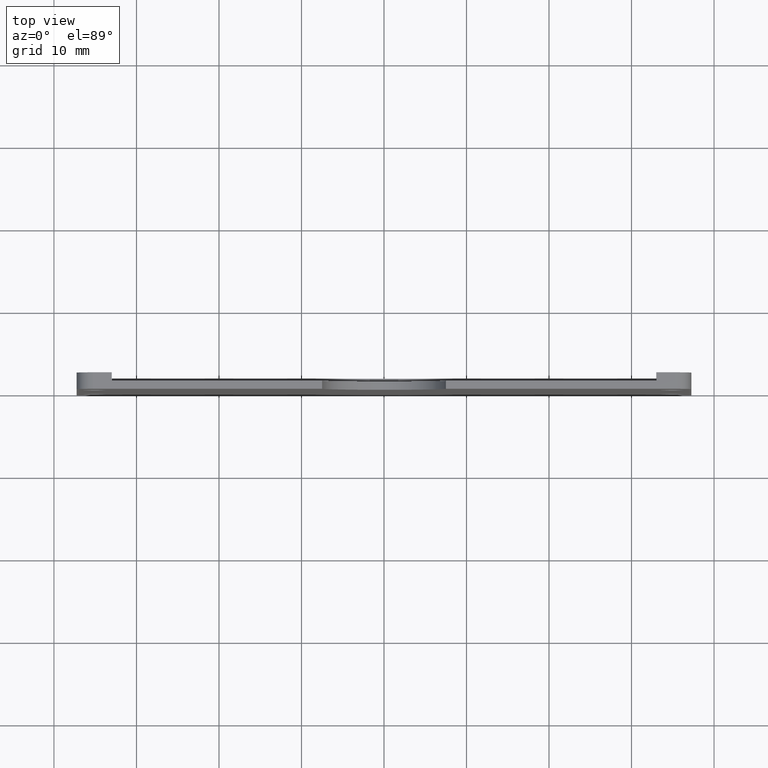
[diagram: clean part render]
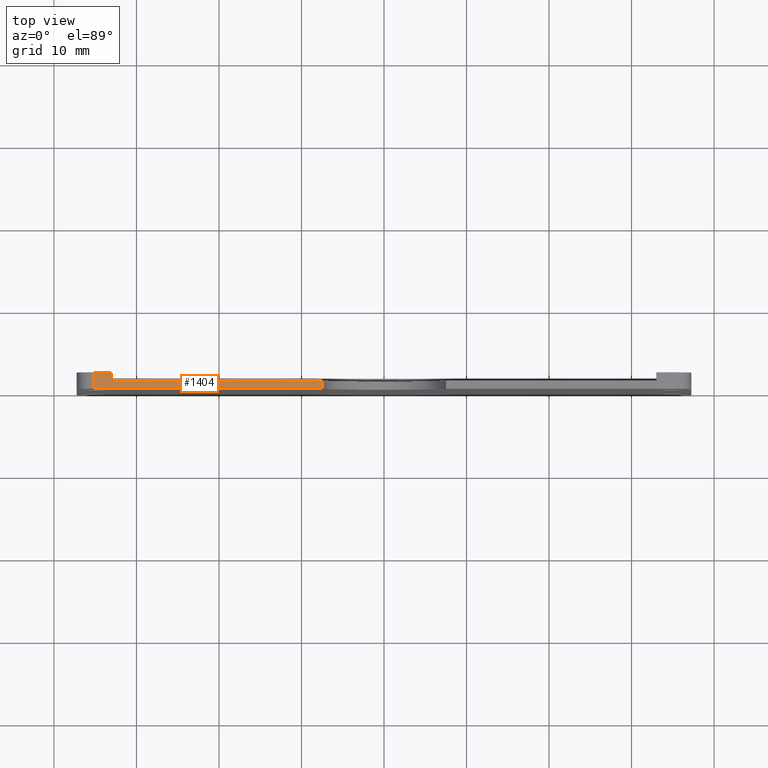
[diagram: same view with one face highlighted and labeled with its STEP entity id]
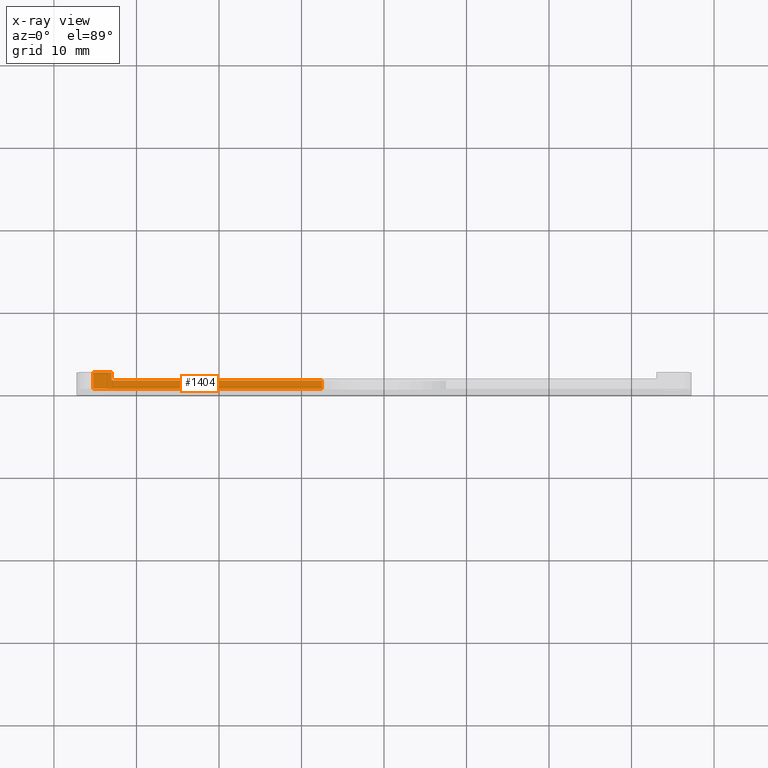
[diagram: x-ray of the same camera — body ghosted, the highlighted face saturated]
A machine part, top view. The second image highlights one B-rep face of the part: STEP entity #1404.
The next image is the same camera in x-ray: the body ghosted, the highlighted face saturated — about 0% of this face is hidden behind the body in this view.
In plain terms, the highlighted face is a freeform B-spline surface patch.
Its self-contained STEP definition (entity closure, byte-faithful):
#795=CARTESIAN_POINT('',(-33.0,1.0,48.0));
#796=VERTEX_POINT('',#795);
#802=CARTESIAN_POINT('',(-7.499999999999900,1.0,48.0));
#803=VERTEX_POINT('',#802);
#804=CARTESIAN_POINT('',(-33.0,1.0,48.0));
#805=CARTESIAN_POINT('',(-7.499999999999900,1.0,48.0));
#806=QUASI_UNIFORM_CURVE('',1,(#804,#805),.UNSPECIFIED.,.F.,.U.);
#807=EDGE_CURVE('',#796,#803,#806,.T.);
#903=CARTESIAN_POINT('',(-33.0,2.0,48.0));
#904=VERTEX_POINT('',#903);
#910=CARTESIAN_POINT('',(-33.0,1.0,48.0));
#911=CARTESIAN_POINT('',(-33.0,2.0,48.0));
#912=QUASI_UNIFORM_CURVE('',1,(#910,#911),.UNSPECIFIED.,.F.,.U.);
#913=EDGE_CURVE('',#796,#904,#912,.T.);
#925=CARTESIAN_POINT('',(-35.250000000000000,0.0,48.0));
#926=VERTEX_POINT('',#925);
#927=CARTESIAN_POINT('',(-7.499999857678900,0.0,47.999999869832301));
#928=VERTEX_POINT('',#927);
#929=CARTESIAN_POINT('',(-35.250000000000000,0.0,48.0));
#930=CARTESIAN_POINT('',(-7.499999857678900,0.0,47.999999869832301));
#931=QUASI_UNIFORM_CURVE('',1,(#929,#930),.UNSPECIFIED.,.F.,.U.);
#932=EDGE_CURVE('',#926,#928,#931,.T.);
#1069=CARTESIAN_POINT('',(-35.250000000000000,2.0,48.0));
#1070=VERTEX_POINT('',#1069);
#1071=CARTESIAN_POINT('',(-35.250000000000000,2.0,48.0));
#1072=CARTESIAN_POINT('',(-33.0,2.0,48.0));
#1073=QUASI_UNIFORM_CURVE('',1,(#1071,#1072),.UNSPECIFIED.,.F.,.U.);
#1074=EDGE_CURVE('',#1070,#904,#1073,.T.);
#1207=CARTESIAN_POINT('',(-35.250000000000000,2.0,48.0));
#1208=CARTESIAN_POINT('',(-35.250000000000000,0.0,48.0));
#1209=QUASI_UNIFORM_CURVE('',1,(#1207,#1208),.UNSPECIFIED.,.F.,.U.);
#1210=EDGE_CURVE('',#1070,#926,#1209,.T.);
#1382=CARTESIAN_POINT('',(-7.499999999999900,1.0,48.0));
#1383=CARTESIAN_POINT('',(-7.499999857678900,0.0,47.999999869832301));
#1384=QUASI_UNIFORM_CURVE('',1,(#1382,#1383),.UNSPECIFIED.,.F.,.U.);
#1385=EDGE_CURVE('',#803,#928,#1384,.T.);
#1391=CARTESIAN_POINT('',(-6.113887404354848,-0.099899996123612,48.0));
#1392=CARTESIAN_POINT('',(-36.636113197637052,-0.099899996123612,48.0));
#1393=CARTESIAN_POINT('',(-6.113887404354848,2.099900049767792,48.0));
#1394=CARTESIAN_POINT('',(-36.636113197637059,2.099900049767792,48.0));
#1395=B_SPLINE_SURFACE_WITH_KNOTS('',1,1,((#1391,#1393),(#1392,#1394)),.UNSPECIFIED.,.F.,.F.,.U.,(2,2),(2,2),(0.0,30.522225793282210),(0.0,2.199800045891404),.UNSPECIFIED.);
#1396=ORIENTED_EDGE('',*,*,#807,.F.);
#1397=ORIENTED_EDGE('',*,*,#913,.T.);
#1398=ORIENTED_EDGE('',*,*,#1074,.F.);
#1399=ORIENTED_EDGE('',*,*,#1210,.T.);
#1400=ORIENTED_EDGE('',*,*,#932,.T.);
#1401=ORIENTED_EDGE('',*,*,#1385,.F.);
#1402=EDGE_LOOP('',(#1396,#1397,#1398,#1399,#1400,#1401));
#1403=FACE_OUTER_BOUND('',#1402,.T.);
#1404=ADVANCED_FACE('',(#1403),#1395,.F.);